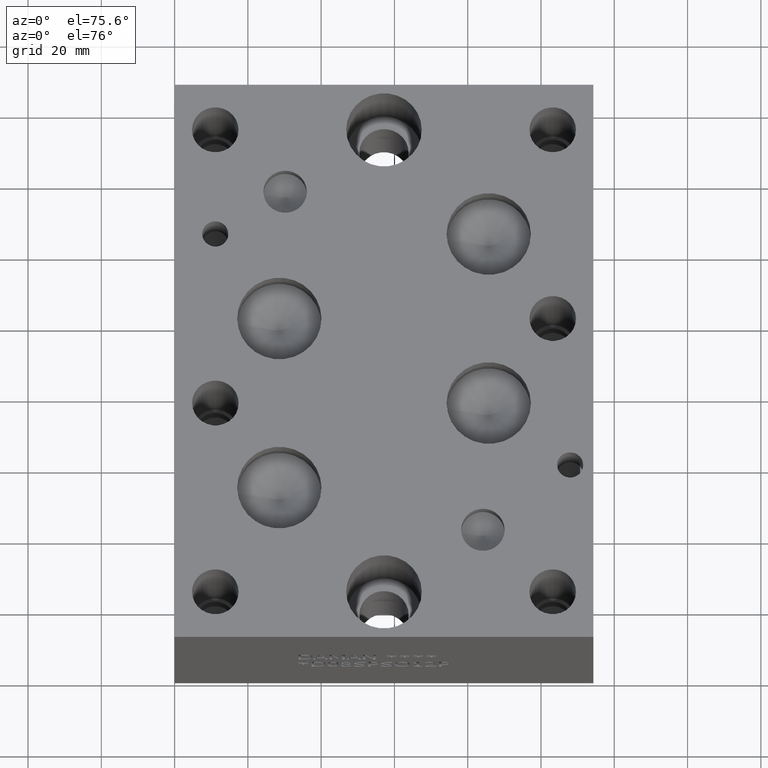
[diagram: clean part render]
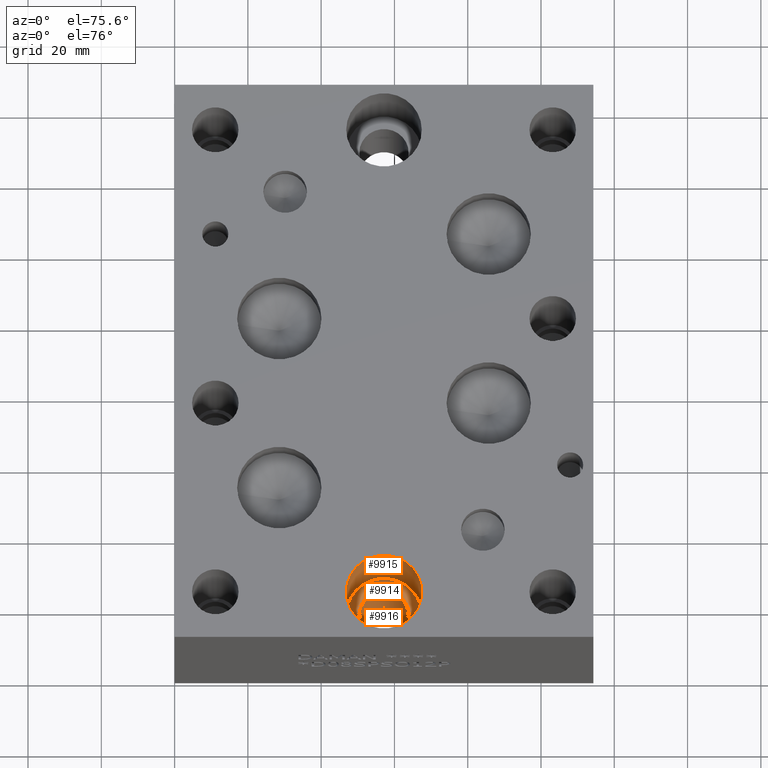
[diagram: same view with one multi-face feature highlighted, each face labeled with its STEP entity id]
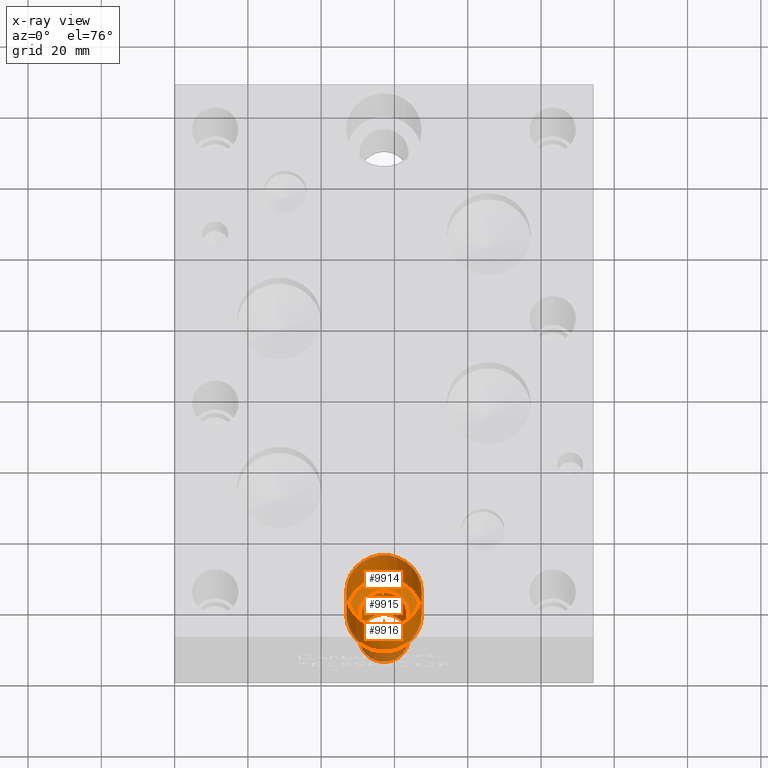
[diagram: x-ray of the same camera — body ghosted, the whole feature saturated]
A machine part, auxiliary view. The highlighted faces form ONE feature: a stepped (counterbored) hole: 2 coaxial cylindrical walls of radii 6.7437 -> 10.3124 mm joined by 1 annular planar shoulder face(s). The faces share edges in the B-rep.
The next image is the same camera in x-ray: the body ghosted and the whole hole feature saturated, so the bore chain is visible through the body.
Their STEP definitions:
[1] entity #9915 (Cylinder):
#28=CYLINDRICAL_SURFACE('',#10343,10.3124);
#118=CIRCLE('',#10340,10.3124);
#119=CIRCLE('',#10341,10.3124);
#121=CIRCLE('',#10344,10.3124);
#122=CIRCLE('',#10345,10.3124);
#1163=FACE_OUTER_BOUND('',#1723,.T.);
#1723=EDGE_LOOP('',(#8476,#8477,#8478,#8479,#8480,#8481));
#2709=LINE('',#16823,#3661);
#3661=VECTOR('',#12122,10.3124);
#4541=VERTEX_POINT('',#16812);
#4542=VERTEX_POINT('',#16813);
#4544=VERTEX_POINT('',#16819);
#4545=VERTEX_POINT('',#16820);
#5883=EDGE_CURVE('',#4541,#4542,#118,.T.);
#5884=EDGE_CURVE('',#4542,#4541,#119,.T.);
#5886=EDGE_CURVE('',#4544,#4545,#121,.T.);
#5887=EDGE_CURVE('',#4545,#4544,#122,.T.);
#5888=EDGE_CURVE('',#4545,#4542,#2709,.T.);
#8476=ORIENTED_EDGE('',*,*,#5886,.F.);
#8477=ORIENTED_EDGE('',*,*,#5887,.F.);
#8478=ORIENTED_EDGE('',*,*,#5888,.T.);
#8479=ORIENTED_EDGE('',*,*,#5883,.F.);
#8480=ORIENTED_EDGE('',*,*,#5884,.F.);
#8481=ORIENTED_EDGE('',*,*,#5888,.F.);
#9915=ADVANCED_FACE('',(#1163),#28,.F.);
#10340=AXIS2_PLACEMENT_3D('',#16814,#12110,#12111);
#10341=AXIS2_PLACEMENT_3D('',#16815,#12112,#12113);
#10343=AXIS2_PLACEMENT_3D('',#16818,#12116,#12117);
#10344=AXIS2_PLACEMENT_3D('',#16821,#12118,#12119);
#10345=AXIS2_PLACEMENT_3D('',#16822,#12120,#12121);
#12110=DIRECTION('center_axis',(0.,0.,1.));
#12111=DIRECTION('ref_axis',(1.,0.,0.));
#12112=DIRECTION('center_axis',(0.,0.,1.));
#12113=DIRECTION('ref_axis',(1.,0.,0.));
#12116=DIRECTION('center_axis',(0.,0.,1.));
#12117=DIRECTION('ref_axis',(1.,0.,0.));
#12118=DIRECTION('center_axis',(0.,0.,-1.));
#12119=DIRECTION('ref_axis',(1.,0.,0.));
#12120=DIRECTION('center_axis',(0.,0.,-1.));
#12121=DIRECTION('ref_axis',(1.,0.,0.));
#12122=DIRECTION('',(0.,0.,-1.));
#16812=CARTESIAN_POINT('',(67.4624,12.7,25.4));
#16813=CARTESIAN_POINT('',(46.8376,12.7,25.4));
#16814=CARTESIAN_POINT('Origin',(57.15,12.7,25.4));
#16815=CARTESIAN_POINT('Origin',(57.15,12.7,25.4));
#16818=CARTESIAN_POINT('Origin',(57.15,12.7,38.1));
#16819=CARTESIAN_POINT('',(67.4624,12.7,50.8));
#16820=CARTESIAN_POINT('',(46.8376,12.7,50.8));
#16821=CARTESIAN_POINT('Origin',(57.15,12.7,50.8));
#16822=CARTESIAN_POINT('Origin',(57.15,12.7,50.8));
#16823=CARTESIAN_POINT('',(46.8376,12.7,38.1));
[2] entity #9916 (Cylinder):
#29=CYLINDRICAL_SURFACE('',#10346,6.7437);
#120=CIRCLE('',#10342,6.7437);
#123=CIRCLE('',#10347,6.7437);
#1164=FACE_OUTER_BOUND('',#1724,.T.);
#1724=EDGE_LOOP('',(#8482,#8483,#8484,#8485));
#2710=LINE('',#16826,#3662);
#3662=VECTOR('',#12125,6.7437);
#4543=VERTEX_POINT('',#16816);
#4546=VERTEX_POINT('',#16825);
#5885=EDGE_CURVE('',#4543,#4543,#120,.T.);
#5889=EDGE_CURVE('',#4543,#4546,#2710,.T.);
#5890=EDGE_CURVE('',#4546,#4546,#123,.T.);
#8482=ORIENTED_EDGE('',*,*,#5885,.T.);
#8483=ORIENTED_EDGE('',*,*,#5889,.T.);
#8484=ORIENTED_EDGE('',*,*,#5890,.F.);
#8485=ORIENTED_EDGE('',*,*,#5889,.F.);
#9916=ADVANCED_FACE('',(#1164),#29,.F.);
#10342=AXIS2_PLACEMENT_3D('',#16817,#12114,#12115);
#10346=AXIS2_PLACEMENT_3D('',#16824,#12123,#12124);
#10347=AXIS2_PLACEMENT_3D('',#16827,#12126,#12127);
#12114=DIRECTION('center_axis',(0.,0.,1.));
#12115=DIRECTION('ref_axis',(1.,0.,0.));
#12123=DIRECTION('center_axis',(0.,0.,1.));
#12124=DIRECTION('ref_axis',(1.,0.,0.));
#12125=DIRECTION('',(0.,0.,-1.));
#12126=DIRECTION('center_axis',(0.,0.,1.));
#12127=DIRECTION('ref_axis',(1.,0.,0.));
#16816=CARTESIAN_POINT('',(50.4063,12.7,25.4));
#16817=CARTESIAN_POINT('Origin',(57.15,12.7,25.4));
#16824=CARTESIAN_POINT('Origin',(57.15,12.7,-148.82141825215));
#16825=CARTESIAN_POINT('',(50.4063,12.7,0.));
#16826=CARTESIAN_POINT('',(50.4063,12.7,-148.82141825215));
#16827=CARTESIAN_POINT('Origin',(57.15,12.7,0.));
[3] entity #9914 (Plane):
#118=CIRCLE('',#10340,10.3124);
#119=CIRCLE('',#10341,10.3124);
#120=CIRCLE('',#10342,6.7437);
#251=FACE_BOUND('',#1722,.T.);
#1162=FACE_OUTER_BOUND('',#1721,.T.);
#1721=EDGE_LOOP('',(#8473,#8474));
#1722=EDGE_LOOP('',(#8475));
#4541=VERTEX_POINT('',#16812);
#4542=VERTEX_POINT('',#16813);
#4543=VERTEX_POINT('',#16816);
#5883=EDGE_CURVE('',#4541,#4542,#118,.T.);
#5884=EDGE_CURVE('',#4542,#4541,#119,.T.);
#5885=EDGE_CURVE('',#4543,#4543,#120,.T.);
#8473=ORIENTED_EDGE('',*,*,#5883,.T.);
#8474=ORIENTED_EDGE('',*,*,#5884,.T.);
#8475=ORIENTED_EDGE('',*,*,#5885,.F.);
#9027=PLANE('',#10339);
#9914=ADVANCED_FACE('',(#1162,#251),#9027,.T.);
#10339=AXIS2_PLACEMENT_3D('',#16811,#12108,#12109);
#10340=AXIS2_PLACEMENT_3D('',#16814,#12110,#12111);
#10341=AXIS2_PLACEMENT_3D('',#16815,#12112,#12113);
#10342=AXIS2_PLACEMENT_3D('',#16817,#12114,#12115);
#12108=DIRECTION('center_axis',(0.,0.,1.));
#12109=DIRECTION('ref_axis',(1.,0.,0.));
#12110=DIRECTION('center_axis',(0.,0.,1.));
#12111=DIRECTION('ref_axis',(1.,0.,0.));
#12112=DIRECTION('center_axis',(0.,0.,1.));
#12113=DIRECTION('ref_axis',(1.,0.,0.));
#12114=DIRECTION('center_axis',(0.,0.,1.));
#12115=DIRECTION('ref_axis',(1.,0.,0.));
#16811=CARTESIAN_POINT('Origin',(57.15,12.7,25.4));
#16812=CARTESIAN_POINT('',(67.4624,12.7,25.4));
#16813=CARTESIAN_POINT('',(46.8376,12.7,25.4));
#16814=CARTESIAN_POINT('Origin',(57.15,12.7,25.4));
#16815=CARTESIAN_POINT('Origin',(57.15,12.7,25.4));
#16816=CARTESIAN_POINT('',(50.4063,12.7,25.4));
#16817=CARTESIAN_POINT('Origin',(57.15,12.7,25.4));